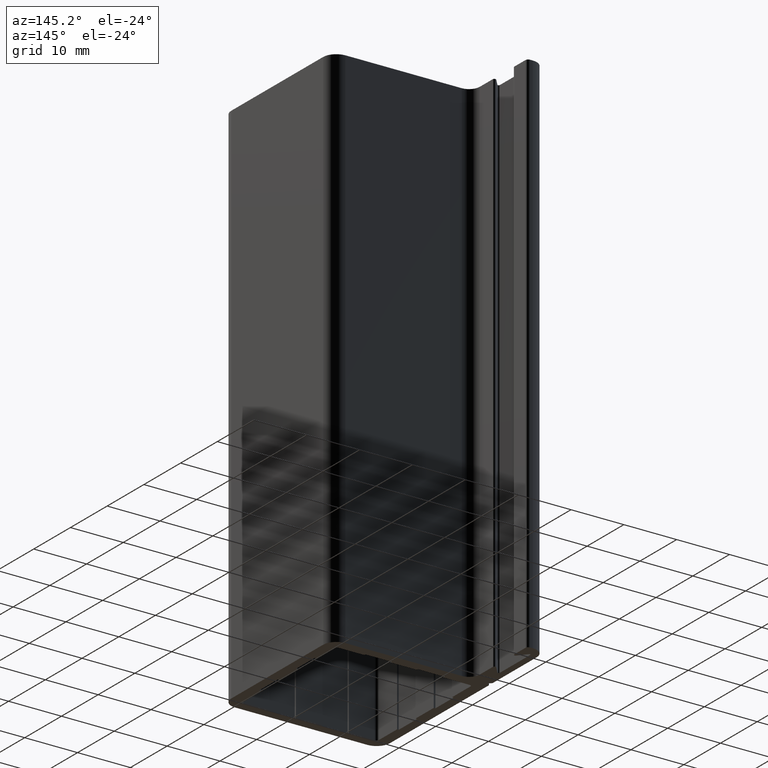
[diagram: clean part render]
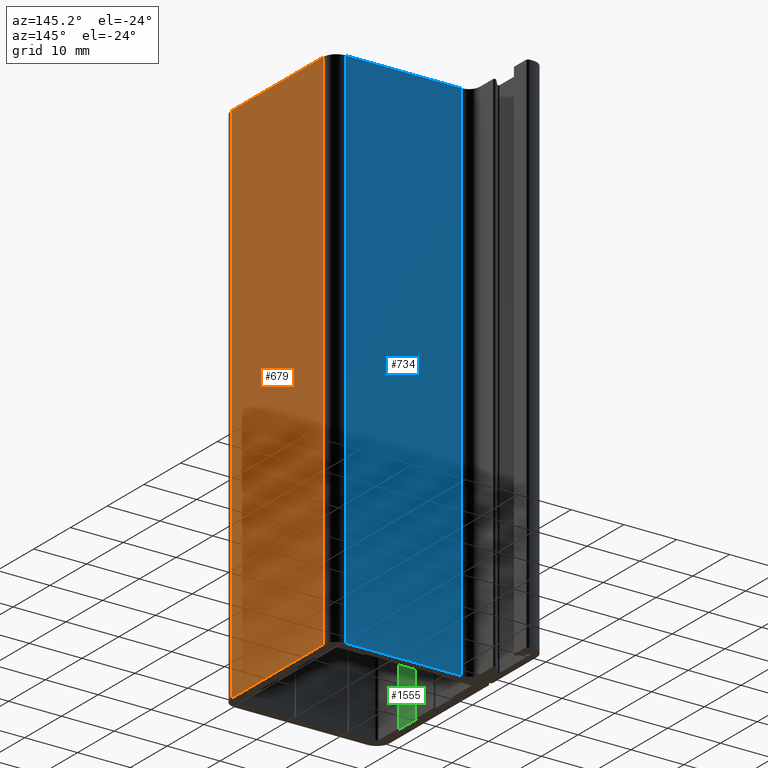
[diagram: same view with three faces highlighted in distinct colors, each labeled with its STEP entity id]
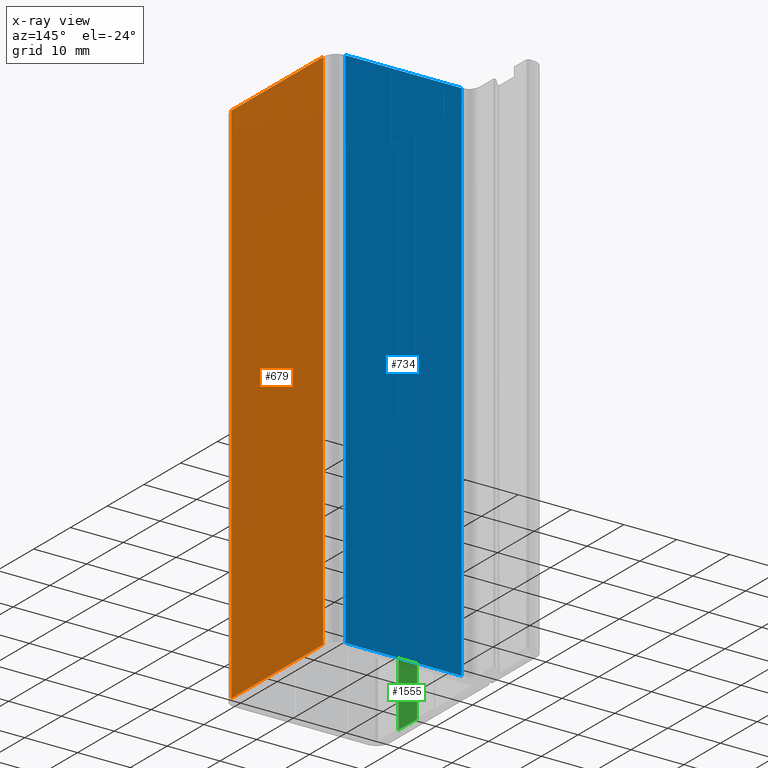
[diagram: x-ray of the same camera — body ghosted, the three highlighted faces saturated]
A machine part, auxiliary view with three faces highlighted in distinct colors.
The next image is the same camera in x-ray (body ghosted, the three faces saturated) — at least one of them is partly hidden behind the body in this view.
Their STEP definitions:

[orange] entity #679 — the highlighted planar face has unit normal (1, 0, 0).
#621=CARTESIAN_POINT('',(0.0,-12.499999998737394,0.0));
#622=VERTEX_POINT('',#621);
#630=CARTESIAN_POINT('',(0.0,-12.499999998737394,100.0));
#631=VERTEX_POINT('',#630);
#632=CARTESIAN_POINT('',(0.0,-12.499999998737394,0.0));
#633=DIRECTION('',(0.0,0.0,1.0));
#634=VECTOR('',#633,100.0);
#635=LINE('',#632,#634);
#636=EDGE_CURVE('',#622,#631,#635,.T.);
#649=CARTESIAN_POINT('',(0.0,-12.499999998737394,0.0));
#650=DIRECTION('',(1.0,0.0,0.0));
#651=DIRECTION('',(0.0,1.0,0.0));
#652=AXIS2_PLACEMENT_3D('',#649,#650,#651);
#653=PLANE('',#652);
#654=CARTESIAN_POINT('',(0.0,12.499999998737621,0.0));
#655=VERTEX_POINT('',#654);
#656=CARTESIAN_POINT('',(0.0,-12.499999998737394,0.0));
#657=DIRECTION('',(0.0,1.0,0.0));
#658=VECTOR('',#657,24.999999997475015);
#659=LINE('',#656,#658);
#660=EDGE_CURVE('',#622,#655,#659,.T.);
#661=ORIENTED_EDGE('',*,*,#660,.T.);
#662=CARTESIAN_POINT('',(0.0,12.499999998737621,100.0));
#663=VERTEX_POINT('',#662);
#664=CARTESIAN_POINT('',(0.0,12.499999998737621,0.0));
#665=DIRECTION('',(0.0,0.0,1.0));
#666=VECTOR('',#665,100.0);
#667=LINE('',#664,#666);
#668=EDGE_CURVE('',#655,#663,#667,.T.);
#669=ORIENTED_EDGE('',*,*,#668,.T.);
#670=CARTESIAN_POINT('',(0.0,-12.499999998737394,100.0));
#671=DIRECTION('',(0.0,1.0,0.0));
#672=VECTOR('',#671,24.999999997475015);
#673=LINE('',#670,#672);
#674=EDGE_CURVE('',#631,#663,#673,.T.);
#675=ORIENTED_EDGE('',*,*,#674,.F.);
#676=ORIENTED_EDGE('',*,*,#636,.F.);
#677=EDGE_LOOP('',(#661,#669,#675,#676));
#678=FACE_OUTER_BOUND('',#677,.T.);
#679=ADVANCED_FACE('',(#678),#653,.T.);

[blue] entity #734 — the highlighted planar face has unit normal (0, 1, 0).
#7=CARTESIAN_POINT('',(-24.499999997319946,14.999999998484554,0.0));
#8=VERTEX_POINT('',#7);
#26=CARTESIAN_POINT('',(-24.499999997319946,14.999999998484554,100.0));
#27=VERTEX_POINT('',#26);
#35=CARTESIAN_POINT('',(-24.499999997319946,14.999999998484554,0.0));
#36=DIRECTION('',(0.0,0.0,1.0));
#37=VECTOR('',#36,100.0);
#38=LINE('',#35,#37);
#39=EDGE_CURVE('',#8,#27,#38,.T.);
#685=CARTESIAN_POINT('',(-2.499999999747502,14.999999998484554,0.0));
#686=VERTEX_POINT('',#685);
#694=CARTESIAN_POINT('',(-2.499999999747502,14.999999998484554,100.0));
#695=VERTEX_POINT('',#694);
#696=CARTESIAN_POINT('',(-2.499999999747502,14.999999998484554,0.0));
#697=DIRECTION('',(0.0,0.0,1.0));
#698=VECTOR('',#697,100.0);
#699=LINE('',#696,#698);
#700=EDGE_CURVE('',#686,#695,#699,.T.);
#713=CARTESIAN_POINT('',(-2.499999999747502,14.999999998484554,0.0));
#714=DIRECTION('',(0.0,1.0,0.0));
#715=DIRECTION('',(-1.0,0.0,0.0));
#716=AXIS2_PLACEMENT_3D('',#713,#714,#715);
#717=PLANE('',#716);
#718=CARTESIAN_POINT('',(-2.499999999747502,14.999999998484554,0.0));
#719=DIRECTION('',(-1.0,0.0,0.0));
#720=VECTOR('',#719,21.999999997572445);
#721=LINE('',#718,#720);
#722=EDGE_CURVE('',#686,#8,#721,.T.);
#723=ORIENTED_EDGE('',*,*,#722,.T.);
#724=ORIENTED_EDGE('',*,*,#39,.T.);
#725=CARTESIAN_POINT('',(-2.499999999747502,14.999999998484554,100.0));
#726=DIRECTION('',(-1.0,0.0,0.0));
#727=VECTOR('',#726,21.999999997572445);
#728=LINE('',#725,#727);
#729=EDGE_CURVE('',#695,#27,#728,.T.);
#730=ORIENTED_EDGE('',*,*,#729,.F.);
#731=ORIENTED_EDGE('',*,*,#700,.F.);
#732=EDGE_LOOP('',(#723,#724,#730,#731));
#733=FACE_OUTER_BOUND('',#732,.T.);
#734=ADVANCED_FACE('',(#733),#717,.T.);

[green] entity #1555 — the highlighted planar face has unit normal (1, 0, 0).
#1499=CARTESIAN_POINT('',(-28.199999997151849,-7.499999999242391,0.0));
#1500=VERTEX_POINT('',#1499);
#1507=CARTESIAN_POINT('',(-28.199999997151849,-7.499999999242391,100.0));
#1508=VERTEX_POINT('',#1507);
#1509=CARTESIAN_POINT('',(-28.199999997151849,-7.499999999242391,0.0));
#1510=DIRECTION('',(0.0,0.0,1.0));
#1511=VECTOR('',#1510,100.0);
#1512=LINE('',#1509,#1511);
#1513=EDGE_CURVE('',#1500,#1508,#1512,.T.);
#1525=CARTESIAN_POINT('',(-28.199999997151849,-7.499999999242391,0.0));
#1526=DIRECTION('',(1.0,0.0,0.0));
#1527=DIRECTION('',(0.0,1.0,0.0));
#1528=AXIS2_PLACEMENT_3D('',#1525,#1526,#1527);
#1529=PLANE('',#1528);
#1530=CARTESIAN_POINT('',(-28.199999997151849,-2.499999999747388,0.0));
#1531=VERTEX_POINT('',#1530);
#1532=CARTESIAN_POINT('',(-28.199999997151849,-7.499999999242391,0.0));
#1533=DIRECTION('',(0.0,1.0,0.0));
#1534=VECTOR('',#1533,4.999999999495003);
#1535=LINE('',#1532,#1534);
#1536=EDGE_CURVE('',#1500,#1531,#1535,.T.);
#1537=ORIENTED_EDGE('',*,*,#1536,.T.);
#1538=CARTESIAN_POINT('',(-28.199999997151849,-2.499999999747388,100.0));
#1539=VERTEX_POINT('',#1538);
#1540=CARTESIAN_POINT('',(-28.199999997151849,-2.499999999747388,0.0));
#1541=DIRECTION('',(0.0,0.0,1.0));
#1542=VECTOR('',#1541,100.0);
#1543=LINE('',#1540,#1542);
#1544=EDGE_CURVE('',#1531,#1539,#1543,.T.);
#1545=ORIENTED_EDGE('',*,*,#1544,.T.);
#1546=CARTESIAN_POINT('',(-28.199999997151849,-7.499999999242391,100.0));
#1547=DIRECTION('',(0.0,1.0,0.0));
#1548=VECTOR('',#1547,4.999999999495003);
#1549=LINE('',#1546,#1548);
#1550=EDGE_CURVE('',#1508,#1539,#1549,.T.);
#1551=ORIENTED_EDGE('',*,*,#1550,.F.);
#1552=ORIENTED_EDGE('',*,*,#1513,.F.);
#1553=EDGE_LOOP('',(#1537,#1545,#1551,#1552));
#1554=FACE_OUTER_BOUND('',#1553,.T.);
#1555=ADVANCED_FACE('',(#1554),#1529,.T.);